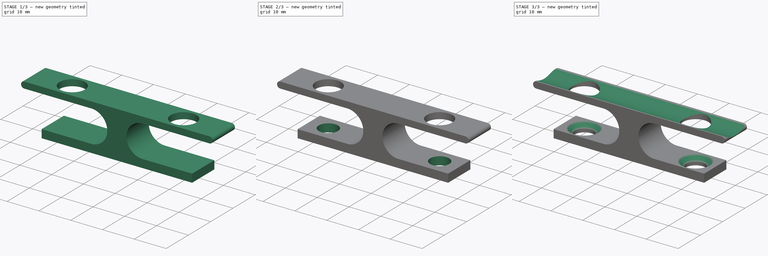
[diagram: build sequence overview — one tinted view per stage of 3, left to right]
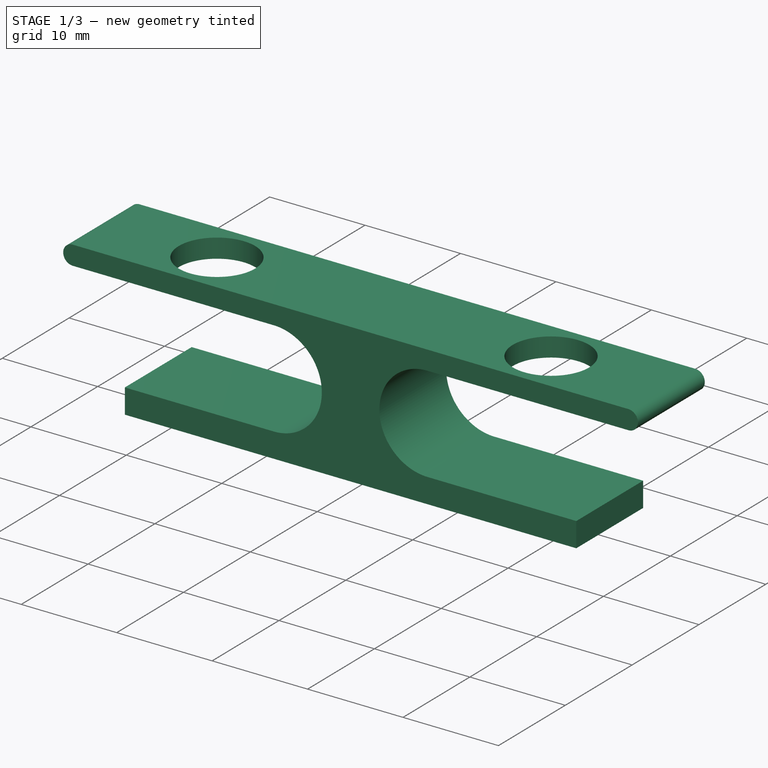
[diagram: stage 1 of 3 — iso view after this stage's code; geometry added in this stage tinted green]
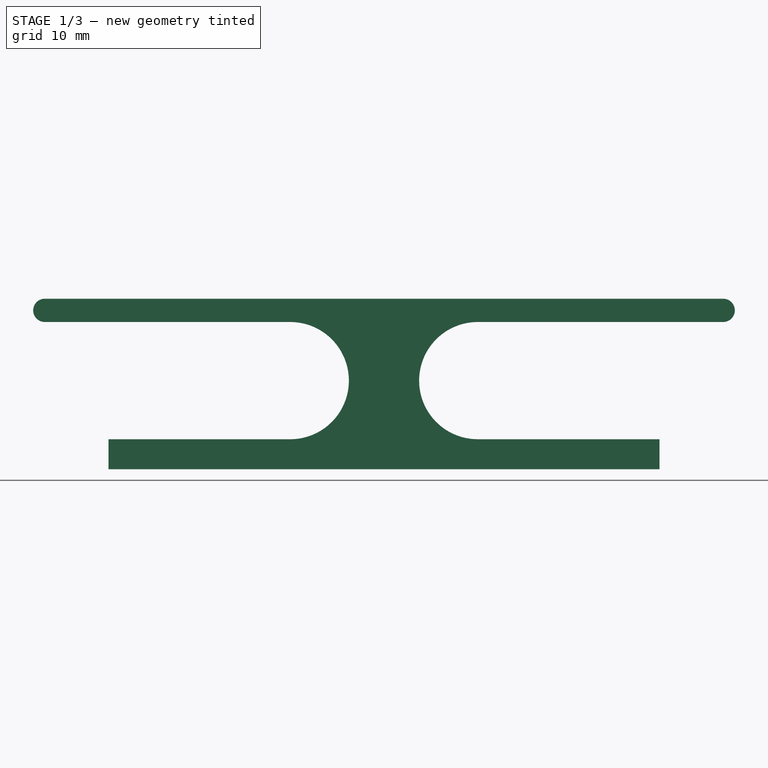
[diagram: stage 1 of 3 — front view after this stage's code; geometry added in this stage tinted green]
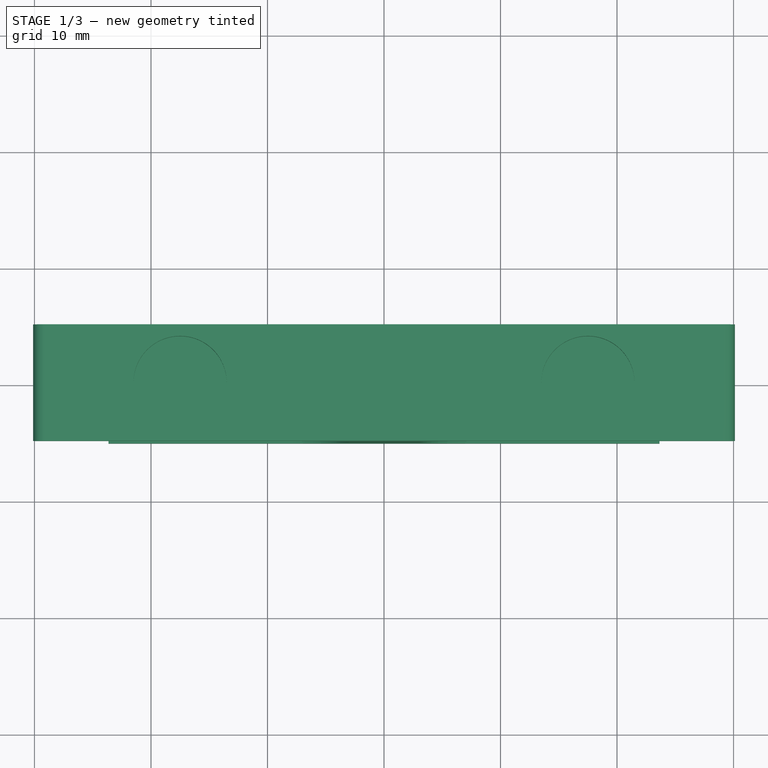
[diagram: stage 1 of 3 — top view after this stage's code; geometry added in this stage tinted green]
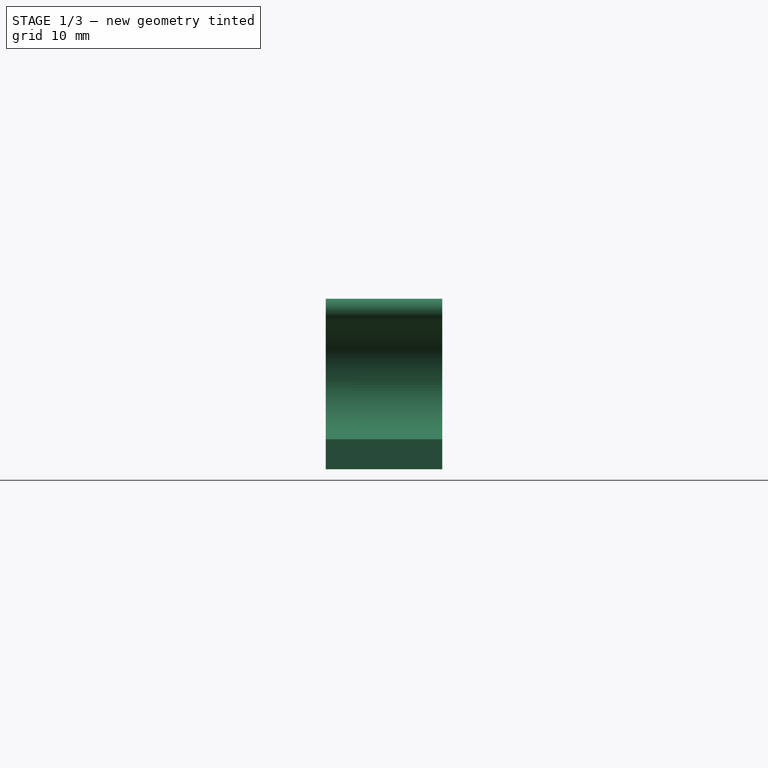
[diagram: stage 1 of 3 — right view after this stage's code; geometry added in this stage tinted green]
FCSTD DOCUMENT  (FreeCAD 0.20R29410 (Git))
Label: Rod_Mount
License: All rights reserved
LicenseURL: http://en.wikipedia.org/wiki/All_rights_reserved
objects: Sketcher::SketchObject×4, PartDesign::Pocket×3, PartDesign::Pad×1, PartDesign::Chamfer×1, PartDesign::Body×1, App::Part×1
note: 15 computed .brp shape members not serialized (recipe doc carries the construction recipe); baked Part::Feature solids carry a one-line shape summary decoded from their .brp

FEATURE [Sketcher::SketchObject] Sketch
  FullyConstrained = true
  MapMode = 5
  Placement = pos=(0,0,0) rot=(1,0,0;1.5708rad)
  Support = -> [XZ_Plane001]
  sketch-geometry (12):
    g0: LineSegment StartX=-29.11 StartY=14.64 StartZ=0 EndX=29.11 EndY=14.64 EndZ=0
    g1: ArcOfCircle CenterX=29.11 CenterY=13.64 CenterZ=0 NormalX=0 NormalY=0 NormalZ=1 AngleXU=0 Radius=1 StartAngle=4.71239 EndAngle=7.85398
    g2: LineSegment StartX=29.11 StartY=12.64 StartZ=0 EndX=8.045 EndY=12.64 EndZ=0
    g3: ArcOfCircle CenterX=8.045 CenterY=7.61 CenterZ=0 NormalX=0 NormalY=0 NormalZ=1 AngleXU=0 Radius=5.03 StartAngle=1.5708 EndAngle=4.71239
    g4: LineSegment StartX=8.045 StartY=2.58 StartZ=0 EndX=23.65 EndY=2.58 EndZ=0
    g5: LineSegment StartX=23.65 StartY=2.58 StartZ=0 EndX=23.65 EndY=0 EndZ=0
    g6: LineSegment StartX=23.65 StartY=0 StartZ=0 EndX=-23.65 EndY=0 EndZ=0
    g7: LineSegment StartX=-23.65 StartY=0 StartZ=0 EndX=-23.65 EndY=2.58 EndZ=0
    g8: LineSegment StartX=-23.65 StartY=2.58 StartZ=0 EndX=-8.045 EndY=2.58 EndZ=0
    g9: ArcOfCircle CenterX=-8.045 CenterY=7.61 CenterZ=0 NormalX=0 NormalY=0 NormalZ=1 AngleXU=0 Radius=5.03 StartAngle=4.71239 EndAngle=7.85398
    g10: LineSegment StartX=-8.045 StartY=12.64 StartZ=0 EndX=-29.11 EndY=12.64 EndZ=0
    g11: ArcOfCircle CenterX=-29.11 CenterY=13.64 CenterZ=0 NormalX=0 NormalY=0 NormalZ=1 AngleXU=0 Radius=1 StartAngle=1.5708 EndAngle=4.71239
  constraints (33):
    c: Tangent(g0,g1) = 1.5708
    c: Coincident(g1,g2)
    c: Horizontal(g2)
    c: Tangent(g2,g3) = -1.5708
    c: Coincident(g3,g4)
    c: Horizontal(g4)
    c: Coincident(g4,g5)
    c: PointOnObject(g5,g-1)
    c: Coincident(g5,g6)
    c: Coincident(g6,g7)
    c: Coincident(g7,g8)
    c: Horizontal(g8)
    c: Tangent(g8,g9) = -1.5708
    c: Coincident(g9,g10)
    c: Horizontal(g10)
    c: Tangent(g10,g11) = 1.5708
    c: Coincident(g11,g0)
    c: Symmetric(g0,g0,g-2)
    c: Equal(g1,g11)
    c: Radius(g1) = 1
    c: Vertical(g10,g0)
    c: Vertical(g0,g1)
    c: Vertical(g9,g8)
    c: Vertical(g2,g3)
    c: Symmetric(g9,g3,g-2)
    c: Vertical(g7)
    c: Vertical(g5)
    c: Symmetric(g6,g5,g-2)
    c: DistanceX(g7,g4) = 47.3
    c: Radius(g3) = 5.03
    c: DistanceY(g-1,g9) = 7.61
    c: DistanceX(g11,g-1) = 29.11
    c: DistanceX(g8,g3) = 16.09
FEATURE [PartDesign::Pad] Pad
  Direction = (0,-1,2e-16)
  Length = 10
  Length2 = 10
  Midplane = true
  Placement = pos=(0,0,0) rot=(1,0,0;1.5708rad)
  Profile = -> Sketch
  ReferenceAxis = -> Sketch [N_Axis]
  Type = 0
FEATURE [Sketcher::SketchObject] Sketch001
  AttachmentOffset = pos=(0,0,15) rot=(0,0,1;0rad)
  FullyConstrained = true
  MapMode = 5
  Placement = pos=(0,0,15) rot=(0,0,1;0rad)
  Support = -> [XY_Plane001]
  sketch-geometry (2):
    g0: Circle CenterX=-17.5 CenterY=0 CenterZ=0 NormalX=0 NormalY=0 NormalZ=1 AngleXU=0 Radius=4
    g1: Circle CenterX=17.5 CenterY=0 CenterZ=0 NormalX=0 NormalY=0 NormalZ=1 AngleXU=0 Radius=4
  constraints (5):
    c: PointOnObject(g0,g-1)
    c: Equal(g0,g1)
    c: Diameter(g1) = 8
    c: Symmetric(g0,g1,g-1)
    c: DistanceX(g0,g1) = 35
FEATURE [PartDesign::Pocket] Pocket
  BaseFeature = -> Pad
  Direction = (0,0,-1)
  Length = 5
  Length2 = 5
  Placement = pos=(0,0,0) rot=(1,0,0;1.5708rad)
  Profile = -> Sketch001
  ReferenceAxis = -> Sketch001 [N_Axis]
  Type = 0
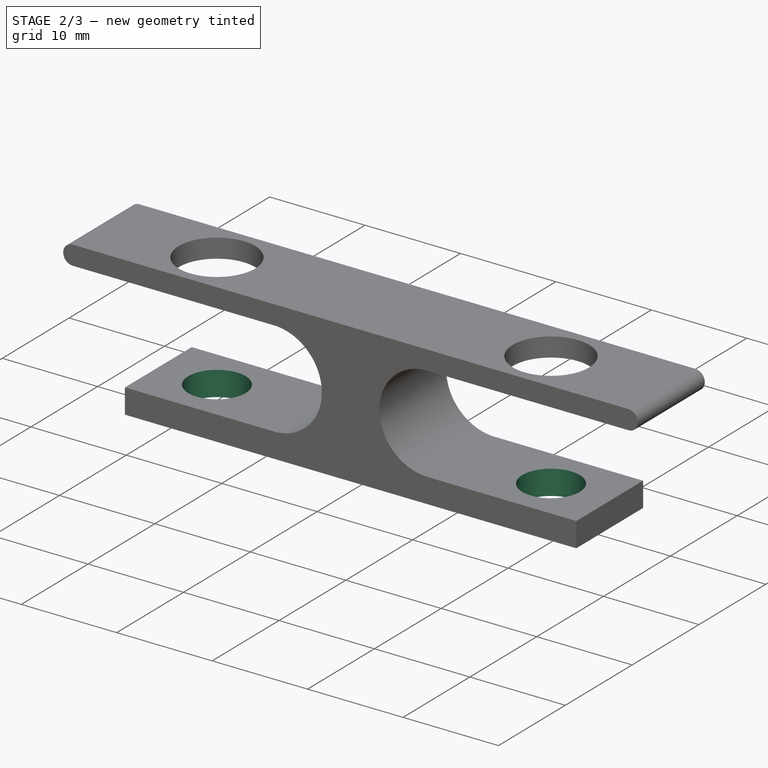
[diagram: stage 2 of 3 — iso view after this stage's code; geometry added in this stage tinted green]
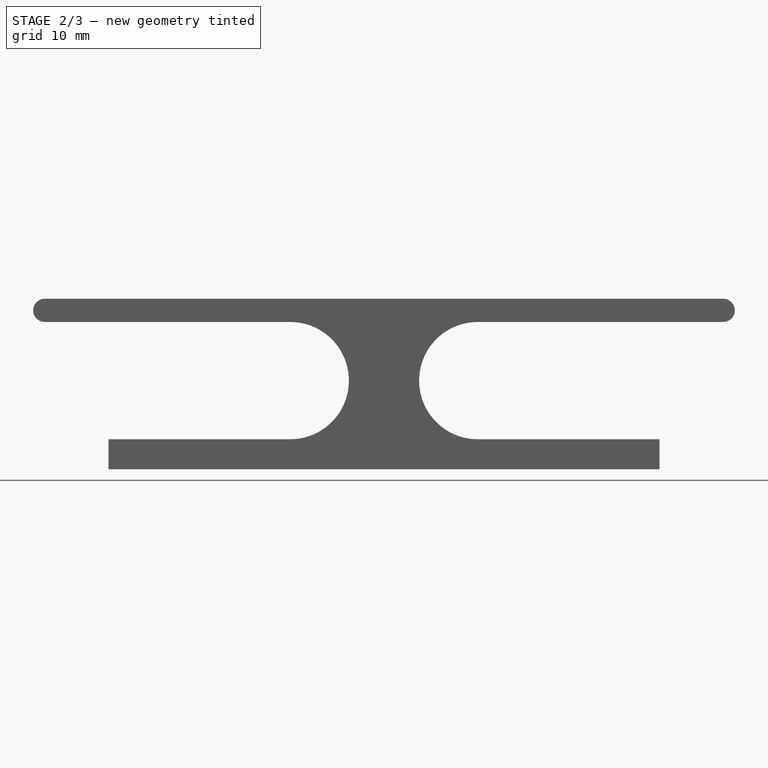
[diagram: stage 2 of 3 — front view after this stage's code; geometry added in this stage tinted green]
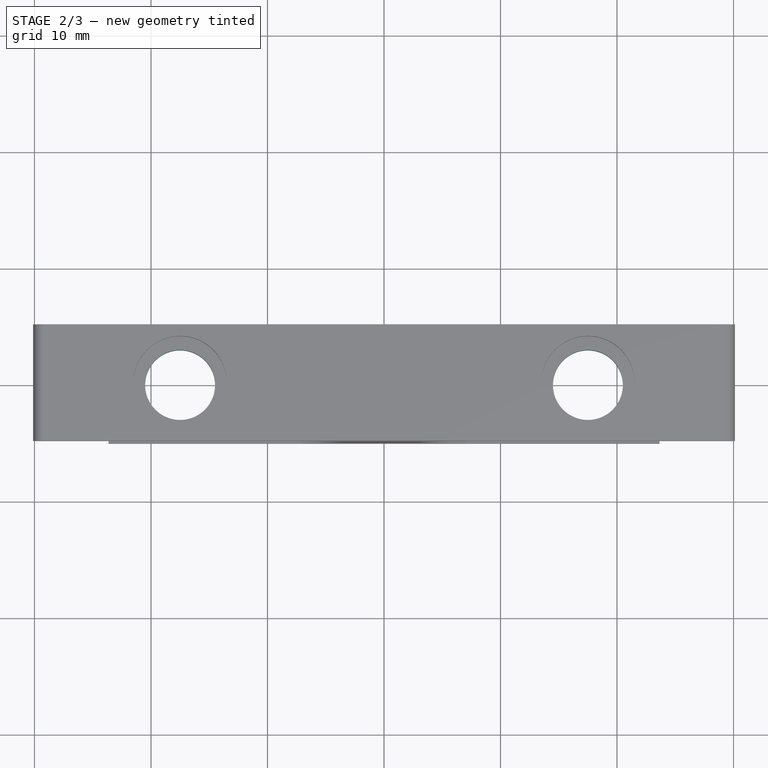
[diagram: stage 2 of 3 — top view after this stage's code; geometry added in this stage tinted green]
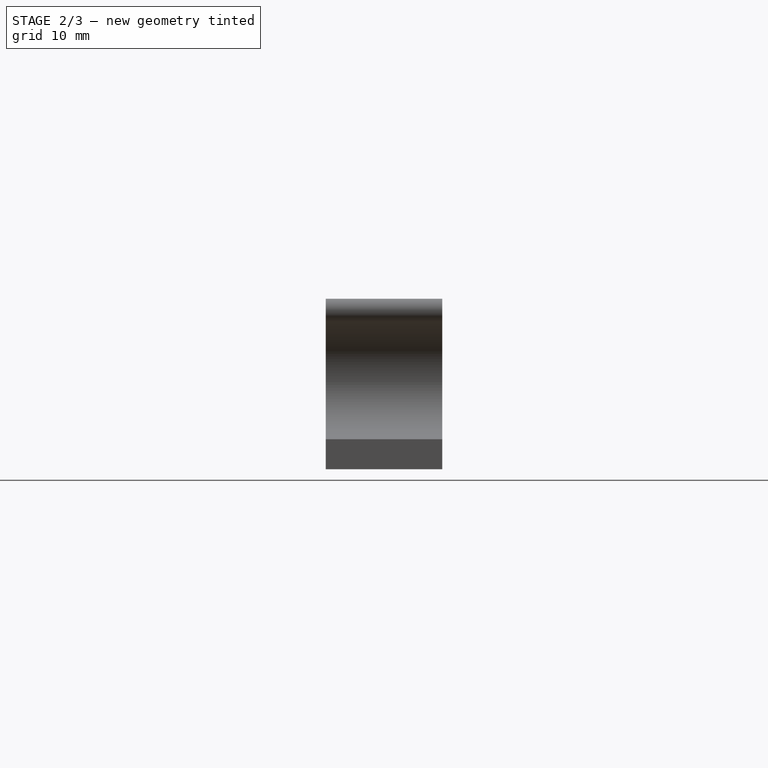
[diagram: stage 2 of 3 — right view after this stage's code; geometry added in this stage tinted green]
FEATURE [Sketcher::SketchObject] Sketch002
  AttachmentOffset = pos=(0,0,3) rot=(0,0,1;0rad)
  FullyConstrained = true
  MapMode = 5
  Placement = pos=(0,0,3) rot=(0,0,1;0rad)
  Support = -> [XY_Plane001]
  sketch-geometry (2):
    g0: Circle CenterX=-17.5 CenterY=0 CenterZ=0 NormalX=0 NormalY=0 NormalZ=1 AngleXU=0 Radius=3
    g1: Circle CenterX=17.5 CenterY=0 CenterZ=0 NormalX=0 NormalY=0 NormalZ=1 AngleXU=0 Radius=3
  constraints (5):
    c: PointOnObject(g0,g-1)
    c: Equal(g0,g1)
    c: Diameter(g1) = 6
    c: DistanceX(g0,g1) = 35
    c: Symmetric(g0,g1,g-1)
FEATURE [PartDesign::Pocket] Pocket001
  BaseFeature = -> Pocket
  Direction = (0,0,-1)
  Length = 5
  Length2 = 5
  Placement = pos=(0,0,0) rot=(1,0,0;1.5708rad)
  Profile = -> Sketch002
  ReferenceAxis = -> Sketch002 [N_Axis]
  Type = 0
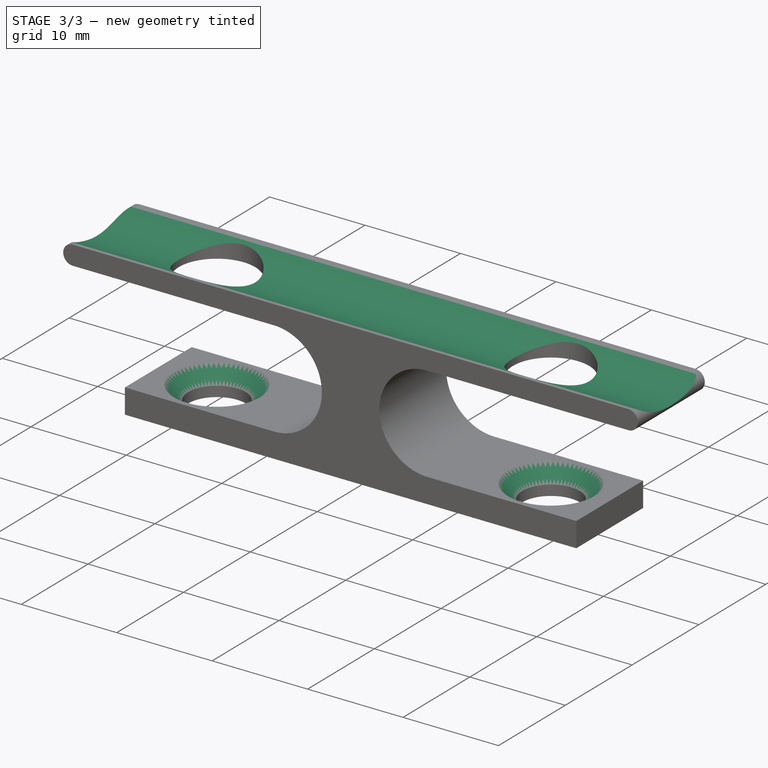
[diagram: stage 3 of 3 — iso view after this stage's code; geometry added in this stage tinted green]
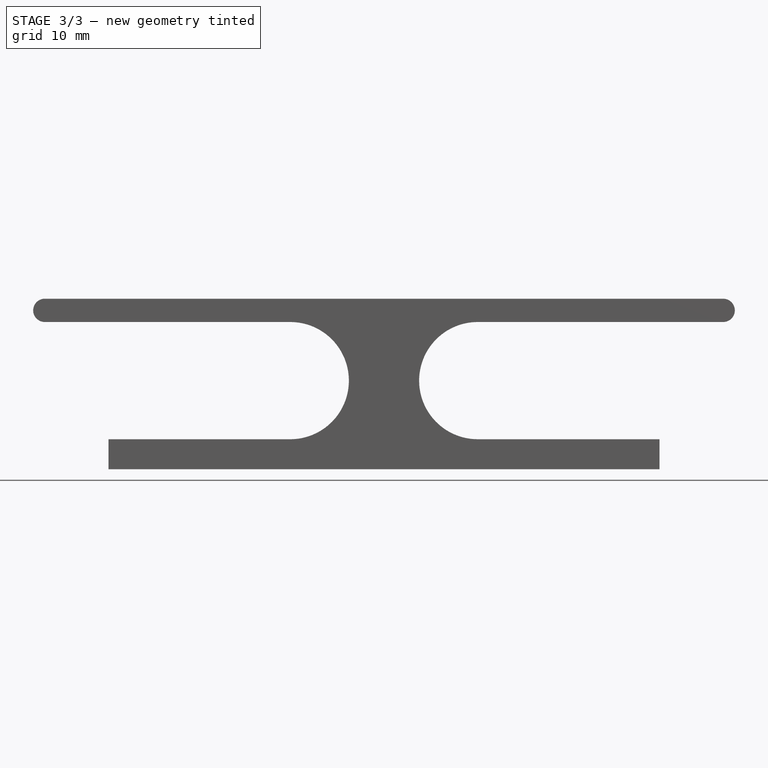
[diagram: stage 3 of 3 — front view after this stage's code; geometry added in this stage tinted green]
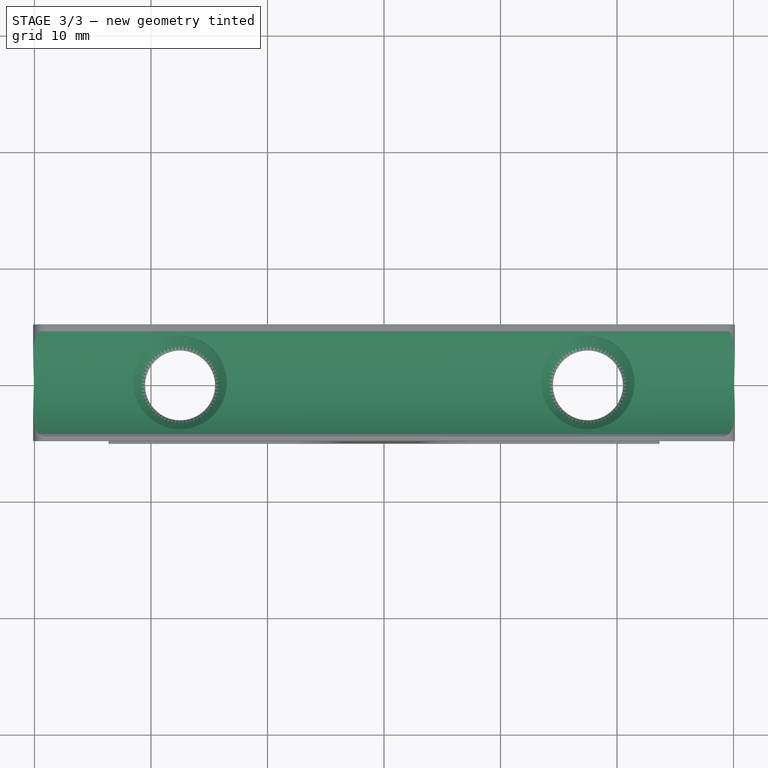
[diagram: stage 3 of 3 — top view after this stage's code; geometry added in this stage tinted green]
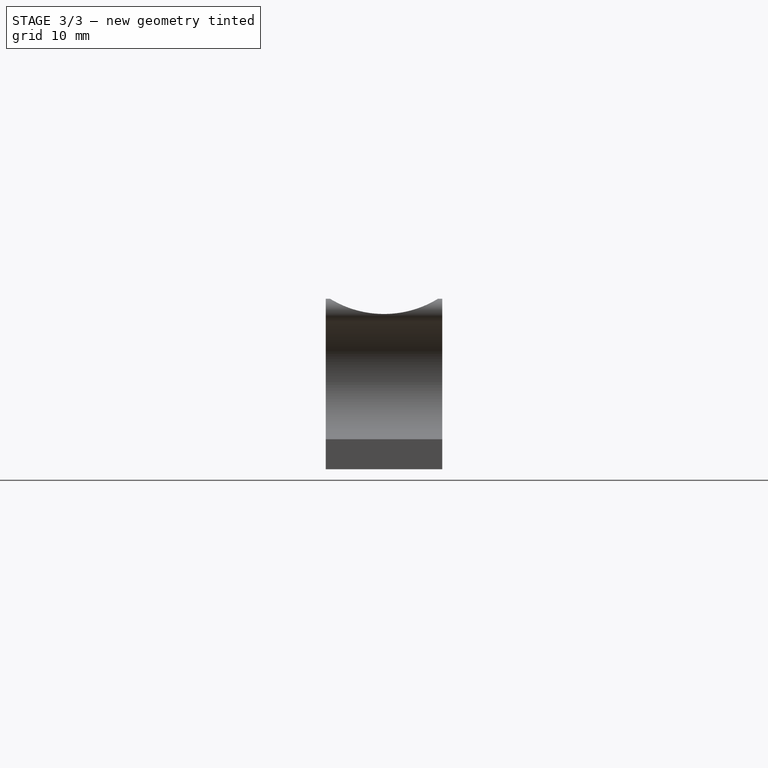
[diagram: stage 3 of 3 — right view after this stage's code; geometry added in this stage tinted green]
FEATURE [PartDesign::Chamfer] Chamfer
  Angle = 45
  Base = -> Pocket001 [Edge46,Edge39]
  BaseFeature = -> Pocket001
  ChamferType = 0
  FlipDirection = false
  Placement = pos=(0,0,0) rot=(1,0,0;1.5708rad)
  Size = 1.5
  Size2 = 1
  SupportTransform = false
  UseAllEdges = false
FEATURE [Sketcher::SketchObject] Sketch003
  FullyConstrained = false
  MapMode = 5
  Placement = pos=(0,0,0) rot=(0.57735,0.57735,0.57735;2.0944rad)
  Support = -> [YZ_Plane001]
  sketch-geometry (2):
    g0: ArcOfCircle CenterX=0 CenterY=22.1594 CenterZ=0 NormalX=0 NormalY=0 NormalZ=1 AngleXU=0 Radius=8.83085 StartAngle=3.78517 EndAngle=5.6396
    g1: LineSegment StartX=-7.06425 StartY=16.8603 StartZ=0 EndX=7.06425 EndY=16.8603 EndZ=0
  constraints (4):
    c: PointOnObject(g0,g-2)
    c: Horizontal(g1)
    c: Coincident(g0,g1)
    c: Coincident(g0,g1)
FEATURE [PartDesign::Pocket] Pocket002
  BaseFeature = -> Chamfer
  Direction = (-1,2e-16,-3e-16)
  Length = 5
  Length2 = 5
  Midplane = true
  Placement = pos=(0,0,0) rot=(1,0,0;1.5708rad)
  Profile = -> Sketch003
  ReferenceAxis = -> Sketch003 [N_Axis]
  Type = 1
FEATURE [PartDesign::Body] Body
  Group = -> [Sketch,Pad,Sketch001,Pocket,Sketch002,Pocket001,Chamfer,Sketch003,Pocket002]
  Origin = -> Origin001
  Tip = -> Pocket002
FEATURE [App::Part] Part
  Group = -> [Body]
  Origin = -> Origin
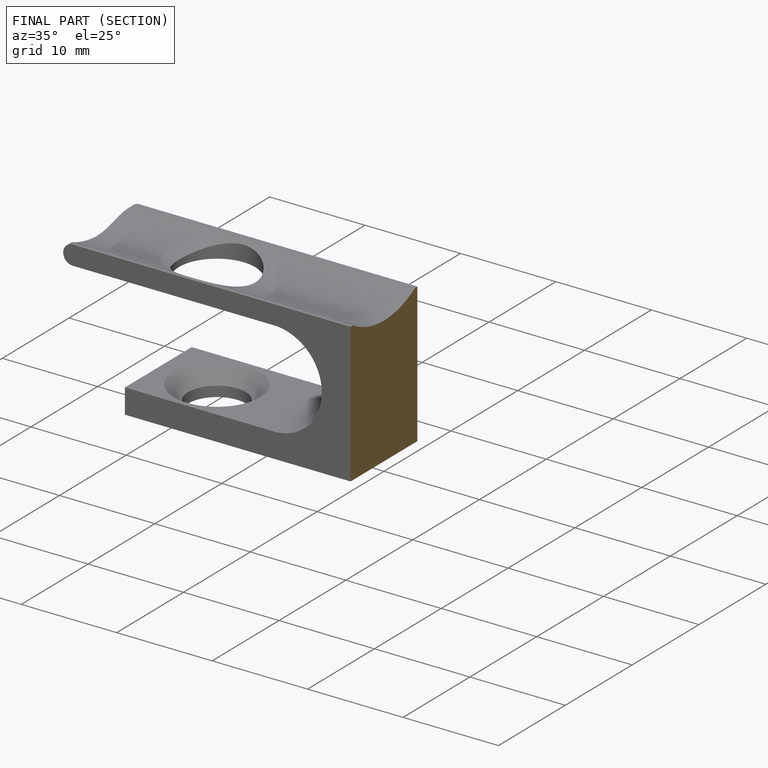
[diagram: finished part — half-section view (interior)]
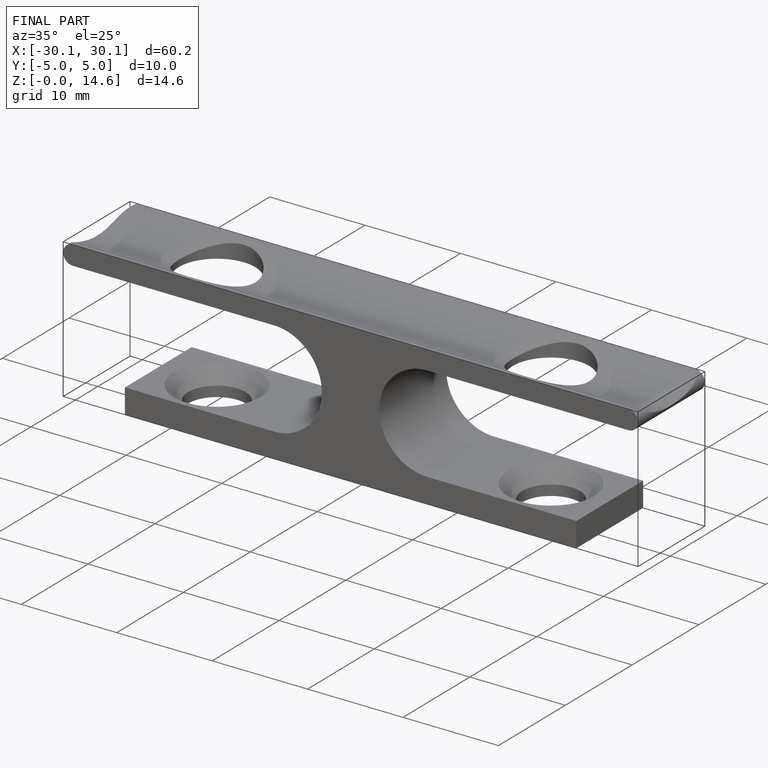
[diagram: finished part — iso view with bounding-box wireframe]
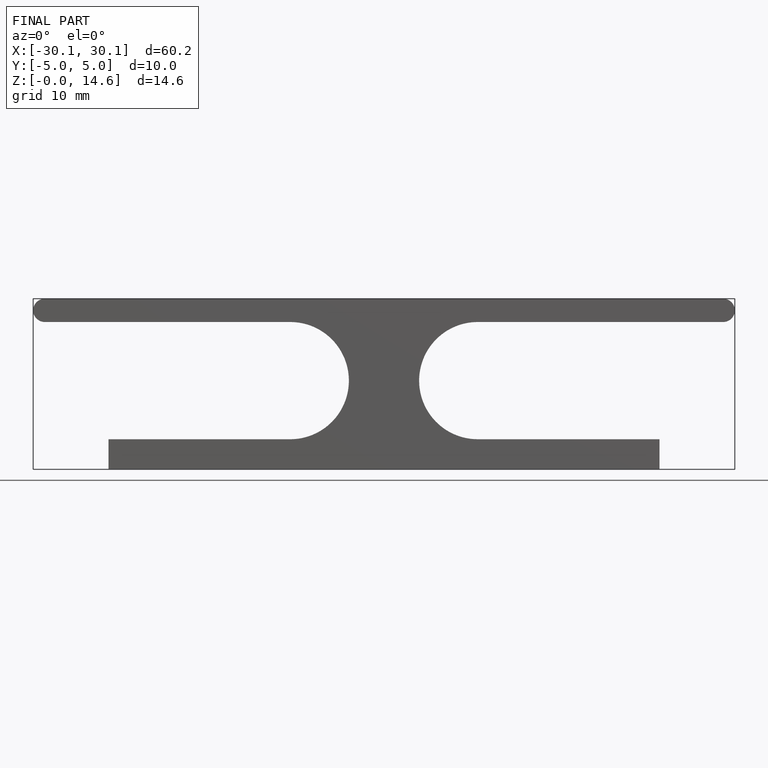
[diagram: finished part — front view with bounding-box wireframe]
